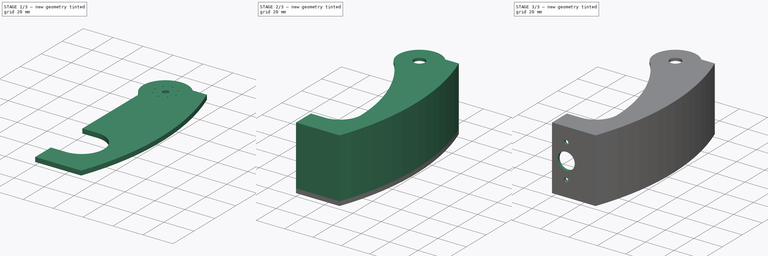
[diagram: build sequence overview — one tinted view per stage of 3, left to right]
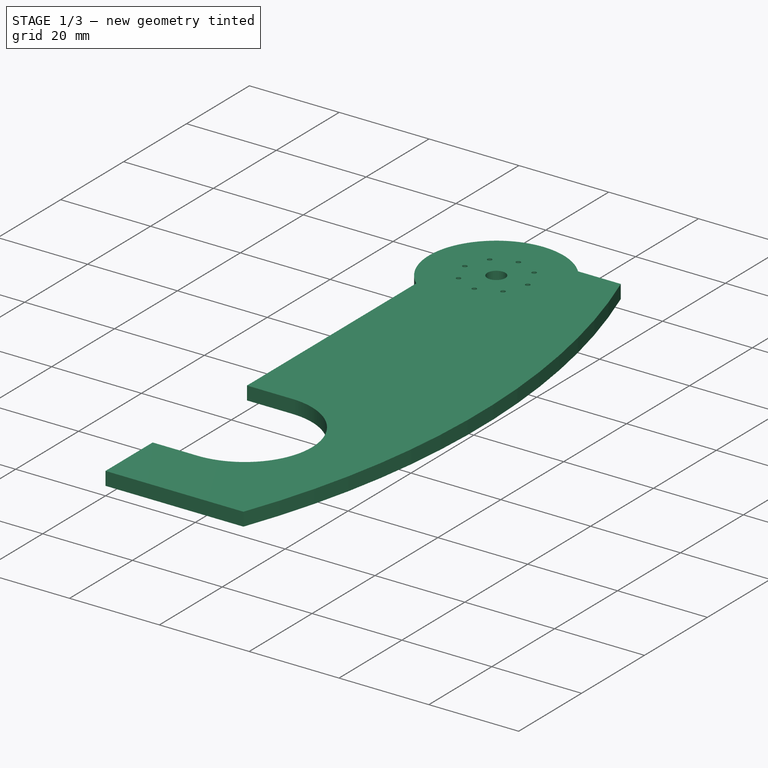
[diagram: stage 1 of 3 — iso view after this stage's code; geometry added in this stage tinted green]
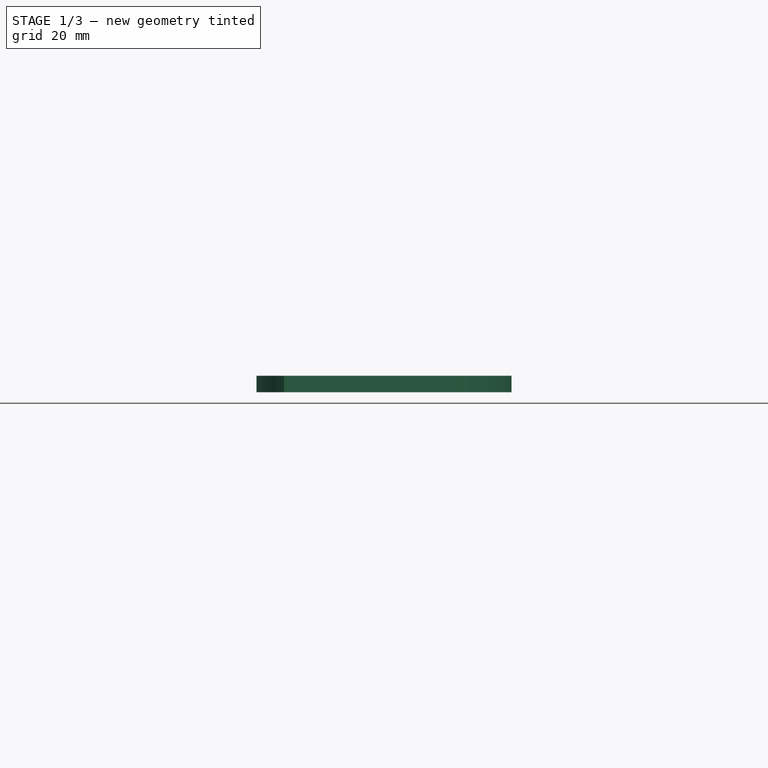
[diagram: stage 1 of 3 — front view after this stage's code; geometry added in this stage tinted green]
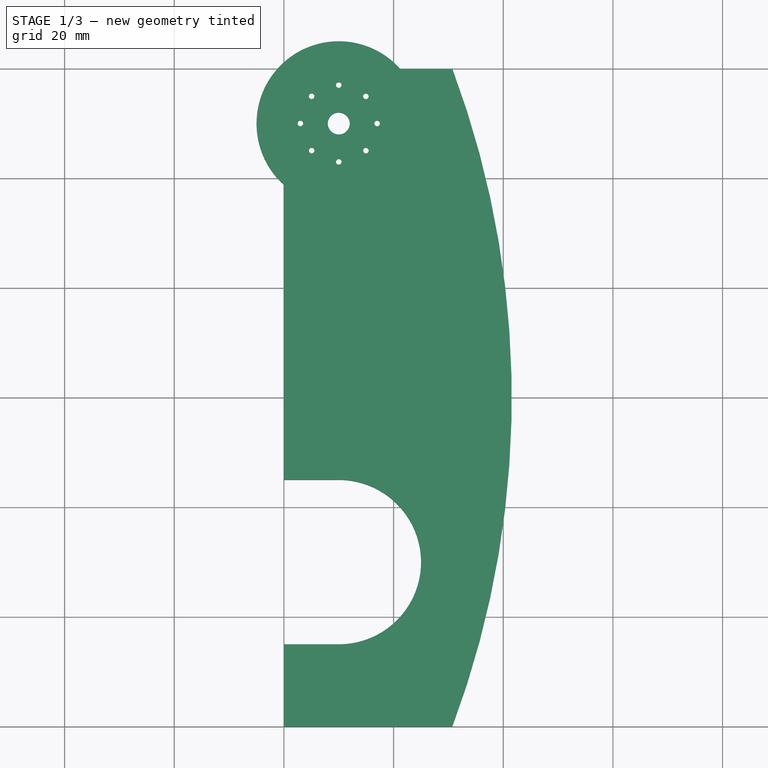
[diagram: stage 1 of 3 — top view after this stage's code; geometry added in this stage tinted green]
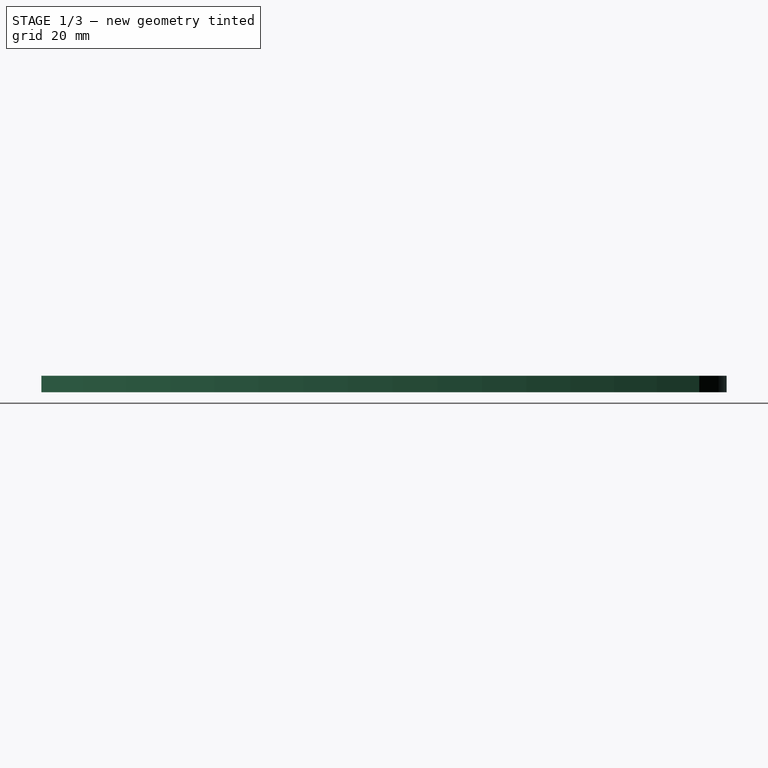
[diagram: stage 1 of 3 — right view after this stage's code; geometry added in this stage tinted green]
FCSTD DOCUMENT  (FreeCAD 0.17R13541 (Git))
Label: leg3-1
License: All rights reserved
LicenseURL: http://en.wikipedia.org/wiki/All_rights_reserved
objects: Sketcher::SketchObject×6, PartDesign::Pad×3, PartDesign::Pocket×3, PartDesign::Body×1, App::Part×1
note: 19 computed .brp shape members not serialized (recipe doc carries the construction recipe); baked Part::Feature solids carry a one-line shape summary decoded from their .brp

FEATURE [Sketcher::SketchObject] Sketch
  MapMode = 5
  Support = -> [XY_Plane001]
  sketch-geometry (30):
    g0: GeomPoint [constr] X=-130 Y=60 Z=0
    g1: LineSegment StartX=0 StartY=0 StartZ=0 EndX=30.7123 EndY=0 EndZ=0
    g2: ArcOfCircle CenterX=-130 CenterY=60 CenterZ=0 NormalX=0 NormalY=0 NormalZ=1 AngleXU=0 Radius=171.547 StartAngle=5.92587 EndAngle=6.6405
    g3: Circle CenterX=10 CenterY=110 CenterZ=0 NormalX=0 NormalY=0 NormalZ=1 AngleXU=0 Radius=2
    g4: LineSegment [constr] StartX=10 StartY=110 StartZ=0 EndX=10 EndY=121.404 EndZ=0
    g5: LineSegment [constr] StartX=10 StartY=110 StartZ=0 EndX=10 EndY=30 EndZ=0
    g6: LineSegment [constr] StartX=10 StartY=110 StartZ=0 EndX=20.6504 EndY=110 EndZ=0
    g7: LineSegment [constr] StartX=10 StartY=110 StartZ=0 EndX=4.23642 EndY=110 EndZ=0
    g8: Circle CenterX=10 CenterY=117 CenterZ=0 NormalX=0 NormalY=0 NormalZ=1 AngleXU=0 Radius=0.5
    g9: Circle CenterX=17 CenterY=110 CenterZ=0 NormalX=0 NormalY=0 NormalZ=1 AngleXU=0 Radius=0.5
    g10: Circle CenterX=10 CenterY=103 CenterZ=0 NormalX=0 NormalY=0 NormalZ=1 AngleXU=0 Radius=0.5
    g11: Circle CenterX=3 CenterY=110 CenterZ=0 NormalX=0 NormalY=0 NormalZ=1 AngleXU=0 Radius=0.5
    g12: LineSegment [constr] StartX=10 StartY=30 StartZ=0 EndX=10 EndY=0.008791 EndZ=0
    g13: ArcOfCircle CenterX=10 CenterY=30 CenterZ=0 NormalX=0 NormalY=0 NormalZ=1 AngleXU=0 Radius=15 StartAngle=4.71239 EndAngle=7.85398
    g14: LineSegment StartX=10 StartY=45 StartZ=0 EndX=0 EndY=45 EndZ=0
    g15: LineSegment StartX=10 StartY=15 StartZ=0 EndX=0 EndY=15 EndZ=0
    g16: LineSegment StartX=0 StartY=15 StartZ=0 EndX=0 EndY=0 EndZ=0
    g17: LineSegment [constr] StartX=0 StartY=45 StartZ=0 EndX=0 EndY=120 EndZ=0
    g18: LineSegment [constr] StartX=30.7123 StartY=120 StartZ=0 EndX=0 EndY=120 EndZ=0
    g19: ArcOfCircle CenterX=10 CenterY=110 CenterZ=0 NormalX=0 NormalY=0 NormalZ=1 AngleXU=0 Radius=15 StartAngle=0.729728 EndAngle=3.98266
    g20: LineSegment StartX=0 StartY=98.8197 StartZ=0 EndX=0 EndY=45 EndZ=0
    g21: LineSegment StartX=21.1803 StartY=120 StartZ=0 EndX=30.7123 EndY=120 EndZ=0
    g22: LineSegment [constr] StartX=10 StartY=110 StartZ=0 EndX=14.9497 EndY=114.95 EndZ=0
    g23: LineSegment [constr] StartX=10 StartY=110 StartZ=0 EndX=5.05025 EndY=105.05 EndZ=0
    g24: LineSegment [constr] StartX=10 StartY=110 StartZ=0 EndX=14.9497 EndY=105.05 EndZ=0
    g25: LineSegment [constr] StartX=10 StartY=110 StartZ=0 EndX=5.05025 EndY=114.95 EndZ=0
    g26: Circle CenterX=14.9497 CenterY=114.95 CenterZ=0 NormalX=0 NormalY=0 NormalZ=1 AngleXU=0 Radius=0.5
    g27: Circle CenterX=14.9497 CenterY=105.05 CenterZ=0 NormalX=0 NormalY=0 NormalZ=1 AngleXU=0 Radius=0.5
    g28: Circle CenterX=5.05025 CenterY=105.05 CenterZ=0 NormalX=0 NormalY=0 NormalZ=1 AngleXU=0 Radius=0.5
    g29: Circle CenterX=5.05025 CenterY=114.95 CenterZ=0 NormalX=0 NormalY=0 NormalZ=1 AngleXU=0 Radius=0.5
  constraints (74):
    c: DistanceY(g-1,g17) = 120
    c: Coincident(g1,g-1)
    c: PointOnObject(g1,g-1)
    c: Coincident(g2,g0)
    c: Coincident(g2,g1)
    c: Radius(g3) = 2
    c: DistanceX(g17,g3) = 10
    c: DistanceY(g3,g17) = 10
    c: Coincident(g4,g3)
    c: Vertical(g4)
    c: Coincident(g5,g3)
    c: Vertical(g5)
    c: Coincident(g6,g3)
    c: Horizontal(g6)
    c: Coincident(g7,g3)
    c: Horizontal(g7)
    c: PointOnObject(g8,g4)
    c: PointOnObject(g9,g6)
    c: PointOnObject(g10,g5)
    c: PointOnObject(g11,g7)
    c: Radius(g8) = 0.5
    c: Equal(g8,g11)
    c: Equal(g8,g9)
    c: Equal(g8,g10)
    c: DistanceX(g11,g3) = 7
    c: DistanceX(g3,g9) = 7
    c: DistanceY(g3,g8) = 7
    c: DistanceY(g10,g3) = 7
    c: DistanceY(g5,g5) = 80
    c: Coincident(g12,g5)
    c: Vertical(g12)
    c: Coincident(g13,g5)
    c: PointOnObject(g13,g5)
    c: PointOnObject(g13,g12)
    c: Radius(g13) = 15
    c: Coincident(g14,g13)
    c: Horizontal(g14)
    c: Coincident(g15,g13)
    c: Horizontal(g15)
    c: Coincident(g16,g15)
    c: Coincident(g16,g-1)
    c: Vertical(g16)
    c: Coincident(g17,g14)
    c: Coincident(g18,g17)
    c: Horizontal(g18)
    c: Coincident(g19,g3)
    c: PointOnObject(g19,g18)
    c: PointOnObject(g19,g17)
    c: Radius(g19) = 15
    c: Vertical(g17)
    c: PointOnObject(g14,g-2)
    c: Coincident(g20,g19)
    c: Coincident(g20,g14)
    c: Coincident(g21,g19)
    c: Distance(g3,g2) = 23
    c: Horizontal(g21)
    c: Coincident(g18,g21)
    c: Coincident(g18,g2)
    c: Angle(g6,g22) = 0.785398
    c: Angle(g24,g6) = 0.785398
    c: Angle(g7,g23) = 0.785398
    c: Angle(g25,g7) = 0.785398
    c: Distance(g24) = 7
    c: Distance(g23) = 7
    c: Distance(g25) = 7
    c: Distance(g22) = 7
    c: Coincident(g22,g26)
    c: Coincident(g24,g27)
    c: Coincident(g23,g28)
    c: Coincident(g25,g29)
    c: Radius(g27) = 0.5
    c: Equal(g27,g26)
    c: Equal(g27,g29)
    c: Equal(g27,g28)
FEATURE [PartDesign::Pad] Pad
  Length = 3
  Length2 = 100
  Profile = -> Sketch
  Type = 0
FEATURE [Sketcher::SketchObject] Sketch002
  ExternalGeometry = -> [Pad]
  MapMode = 5
  Placement = pos=(0,0,3) rot=(0,0,1;0rad)
  Support = -> [Pad]
  sketch-geometry (6):
    g0: ArcOfCircle CenterX=-130 CenterY=60 CenterZ=0 NormalX=0 NormalY=0 NormalZ=1 AngleXU=0 Radius=171.547 StartAngle=5.92587 EndAngle=6.6405
    g1: LineSegment StartX=30.7123 StartY=-6e-12 StartZ=0 EndX=0 EndY=0 EndZ=0
    g2: LineSegment StartX=0 StartY=0 StartZ=0 EndX=0 EndY=2 EndZ=0
    g3: LineSegment StartX=0 StartY=2 StartZ=0 EndX=27.7123 EndY=2 EndZ=0
    g4: LineSegment StartX=30.7123 StartY=120 StartZ=0 EndX=27.7123 EndY=120 EndZ=0
    g5: ArcOfCircle CenterX=-115.289 CenterY=61 CenterZ=0 NormalX=0 NormalY=0 NormalZ=1 AngleXU=0 Radius=154.695 StartAngle=5.89188 EndAngle=6.67449
  constraints (16):
    c: Coincident(g0,g-3)
    c: Coincident(g0,g-3)
    c: Coincident(g0,g-4)
    c: Coincident(g1,g0)
    c: Coincident(g1,g-1)
    c: Coincident(g2,g-1)
    c: PointOnObject(g2,g-2)
    c: Coincident(g3,g2)
    c: Horizontal(g3)
    c: DistanceY(g2,g2) = 2
    c: DistanceX(g3,g0) = 3
    c: Coincident(g4,g0)
    c: PointOnObject(g4,g-4)
    c: DistanceX(g4,g4) = 3
    c: Coincident(g5,g4)
    c: Coincident(g5,g3)
FEATURE [Sketcher::SketchObject] Sketch003
  MapMode = 5
  Placement = pos=(0,0,0) rot=(1,0,0;3.14159rad)
  sketch-geometry (8):
    g0: Circle CenterX=5.05025 CenterY=-114.95 CenterZ=0 NormalX=0 NormalY=0 NormalZ=1 AngleXU=0 Radius=2
    g1: Circle CenterX=5.05025 CenterY=-105.05 CenterZ=0 NormalX=0 NormalY=0 NormalZ=1 AngleXU=0 Radius=2
    g2: Circle CenterX=14.9497 CenterY=-105.05 CenterZ=0 NormalX=0 NormalY=0 NormalZ=1 AngleXU=0 Radius=2
    g3: Circle CenterX=14.9497 CenterY=-114.95 CenterZ=0 NormalX=0 NormalY=0 NormalZ=1 AngleXU=0 Radius=2
    g4: Circle CenterX=10 CenterY=-103 CenterZ=0 NormalX=0 NormalY=0 NormalZ=1 AngleXU=0 Radius=2
    g5: Circle CenterX=17 CenterY=-110 CenterZ=0 NormalX=0 NormalY=0 NormalZ=1 AngleXU=0 Radius=2
    g6: Circle CenterX=10 CenterY=-117 CenterZ=0 NormalX=0 NormalY=0 NormalZ=1 AngleXU=0 Radius=2
    g7: Circle CenterX=3 CenterY=-110 CenterZ=0 NormalX=0 NormalY=0 NormalZ=1 AngleXU=0 Radius=2
  constraints (8):
    c: Radius(g0) = 2
    c: Equal(g0,g1)
    c: Equal(g0,g2)
    c: Equal(g0,g3)
    c: Radius(g7) = 2
    c: Equal(g7,g4)
    c: Equal(g7,g5)
    c: Equal(g7,g6)
FEATURE [PartDesign::Pocket] Pocket
  BaseFeature = -> Pad
  Length = 2
  Length2 = 100
  Profile = -> Sketch003
  Type = 0
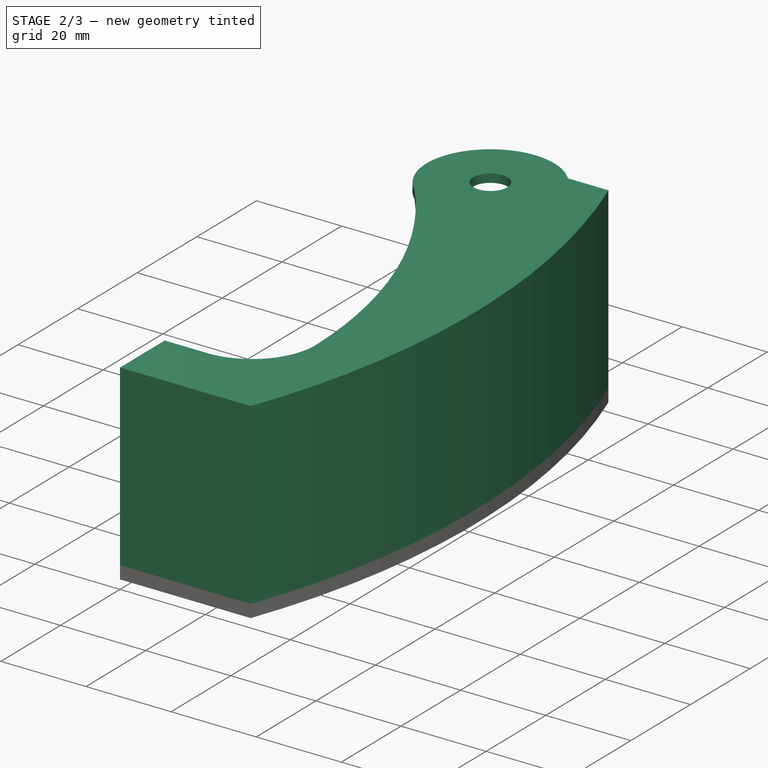
[diagram: stage 2 of 3 — iso view after this stage's code; geometry added in this stage tinted green]
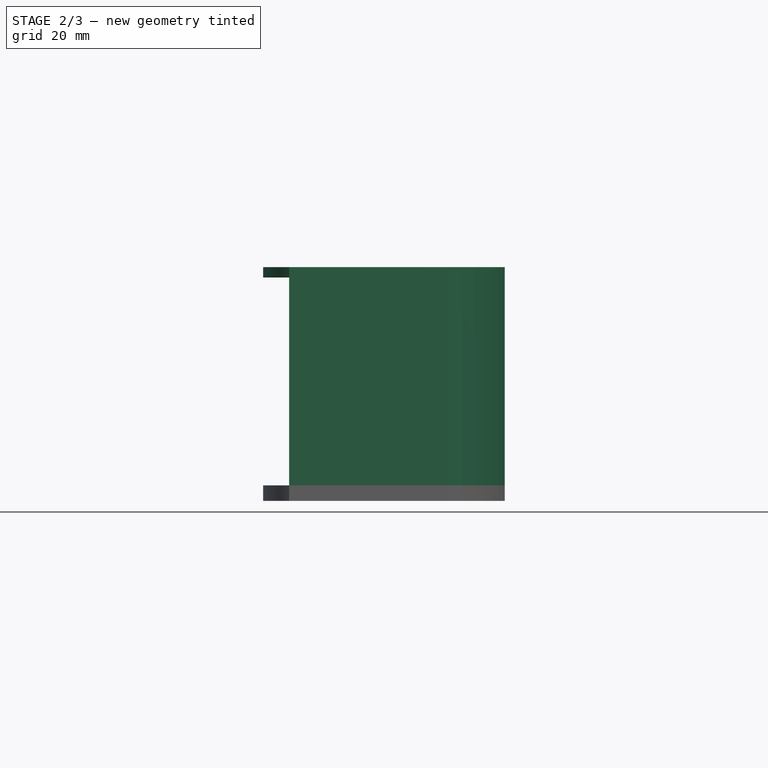
[diagram: stage 2 of 3 — front view after this stage's code; geometry added in this stage tinted green]
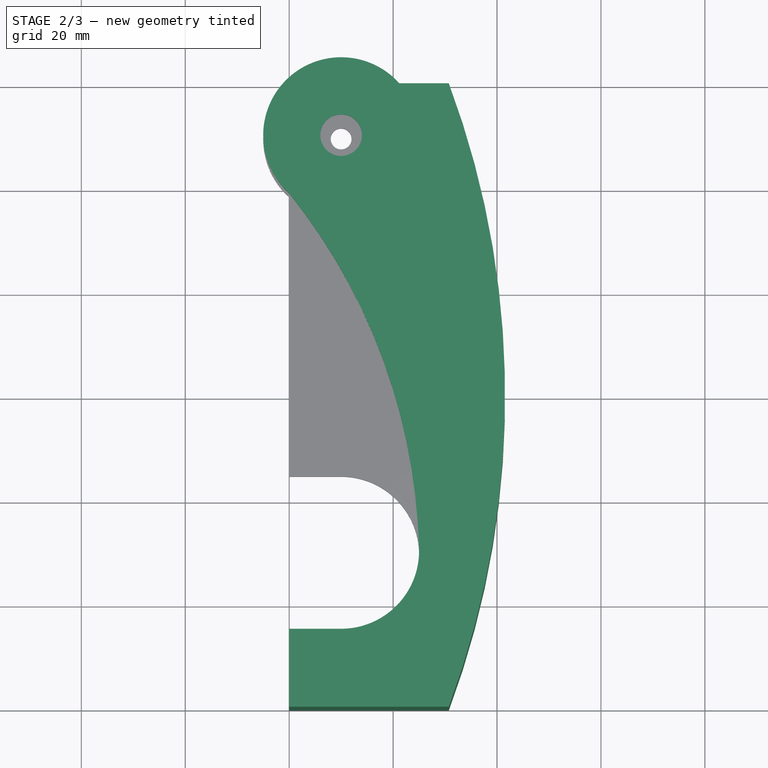
[diagram: stage 2 of 3 — top view after this stage's code; geometry added in this stage tinted green]
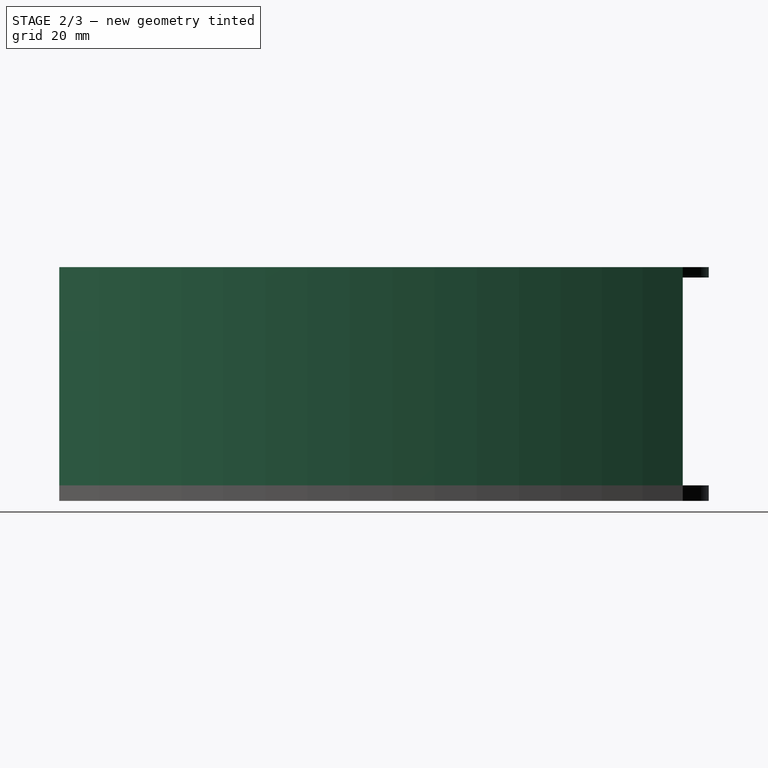
[diagram: stage 2 of 3 — right view after this stage's code; geometry added in this stage tinted green]
FEATURE [PartDesign::Pad] Pad001
  BaseFeature = -> Pocket
  Length = 40
  Length2 = 100
  Profile = -> Sketch002
  Type = 0
FEATURE [Sketcher::SketchObject] Sketch001
  ExternalGeometry = -> [Pad]
  MapMode = 5
  Placement = pos=(0,0,43) rot=(0,0,1;0rad)
  Support = -> [Pad001]
  sketch-geometry (9):
    g0: LineSegment StartX=10 StartY=15 StartZ=0 EndX=0 EndY=15 EndZ=0
    g1: LineSegment StartX=0 StartY=15 StartZ=0 EndX=0 EndY=0 EndZ=0
    g2: LineSegment StartX=0 StartY=0 StartZ=0 EndX=30.7123 EndY=0 EndZ=0
    g3: LineSegment StartX=30.7123 StartY=120 StartZ=0 EndX=21.1803 EndY=120 EndZ=0
    g4: ArcOfCircle CenterX=10 CenterY=110 CenterZ=0 NormalX=0 NormalY=0 NormalZ=1 AngleXU=0 Radius=15 StartAngle=0.729728 EndAngle=3.98266
    g5: ArcOfCircle CenterX=10 CenterY=30 CenterZ=0 NormalX=0 NormalY=0 NormalZ=1 AngleXU=0 Radius=15 StartAngle=4.71239 EndAngle=6.28319
    g6: ArcOfCircle CenterX=-130 CenterY=60 CenterZ=0 NormalX=0 NormalY=0 NormalZ=1 AngleXU=0 Radius=171.547 StartAngle=5.92587 EndAngle=6.6405
    g7: Circle CenterX=10 CenterY=110 CenterZ=0 NormalX=0 NormalY=0 NormalZ=1 AngleXU=0 Radius=4
    g8: ArcOfCircle CenterX=-89.1065 CenterY=27.4994 CenterZ=0 NormalX=0 NormalY=0 NormalZ=1 AngleXU=0 Radius=114.134 StartAngle=0.0219112 EndAngle=0.674981
  constraints (21):
    c: Coincident(g0,g-4)
    c: Coincident(g0,g-5)
    c: Coincident(g1,g0)
    c: Coincident(g1,g-1)
    c: Coincident(g2,g-1)
    c: Coincident(g2,g-6)
    c: Coincident(g3,g-6)
    c: Coincident(g3,g-7)
    c: Horizontal(g3)
    c: Coincident(g4,g-7)
    c: Coincident(g4,g3)
    c: Coincident(g5,g-4)
    c: Coincident(g5,g0)
    c: Coincident(g6,g-6)
    c: Coincident(g6,g3)
    c: Coincident(g6,g2)
    c: Coincident(g7,g4)
    c: Radius(g7) = 4
    c: DistanceY(g5,g5) = 0
    c: Coincident(g8,g4)
    c: Coincident(g8,g5)
FEATURE [PartDesign::Pad] Pad002
  BaseFeature = -> Pad001
  Length = 2
  Length2 = 100
  Profile = -> Sketch001
  Type = 0
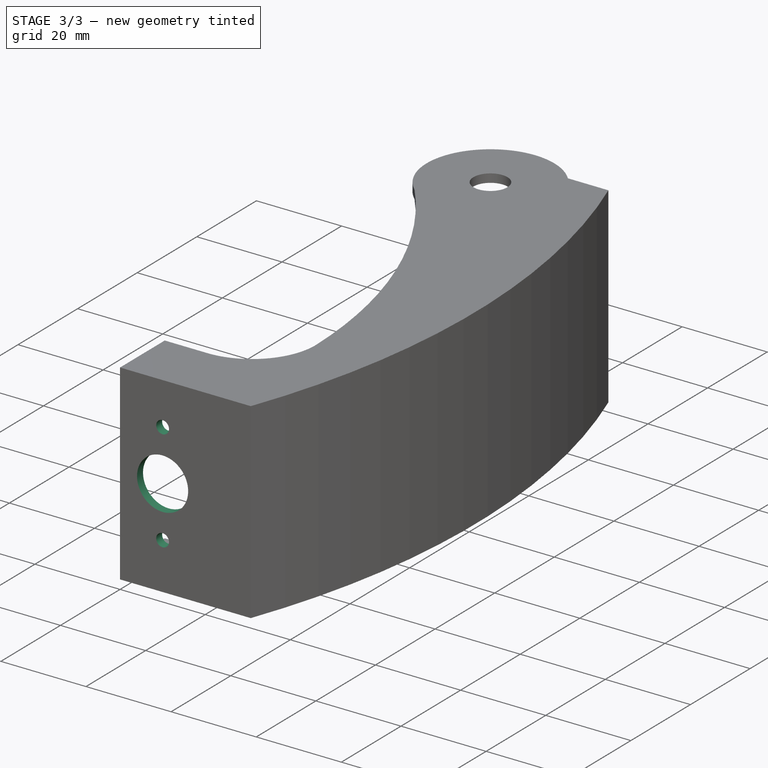
[diagram: stage 3 of 3 — iso view after this stage's code; geometry added in this stage tinted green]
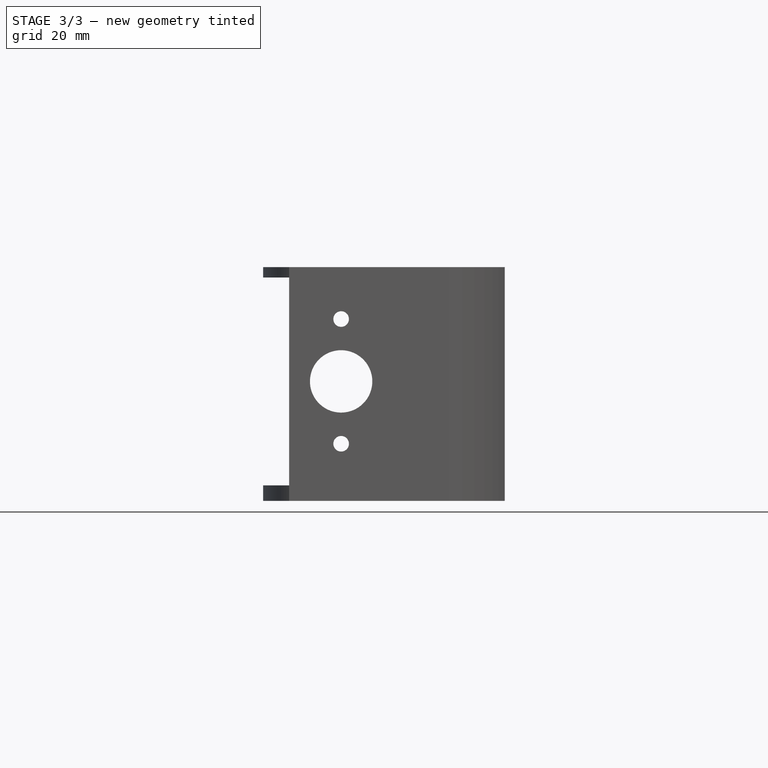
[diagram: stage 3 of 3 — front view after this stage's code; geometry added in this stage tinted green]
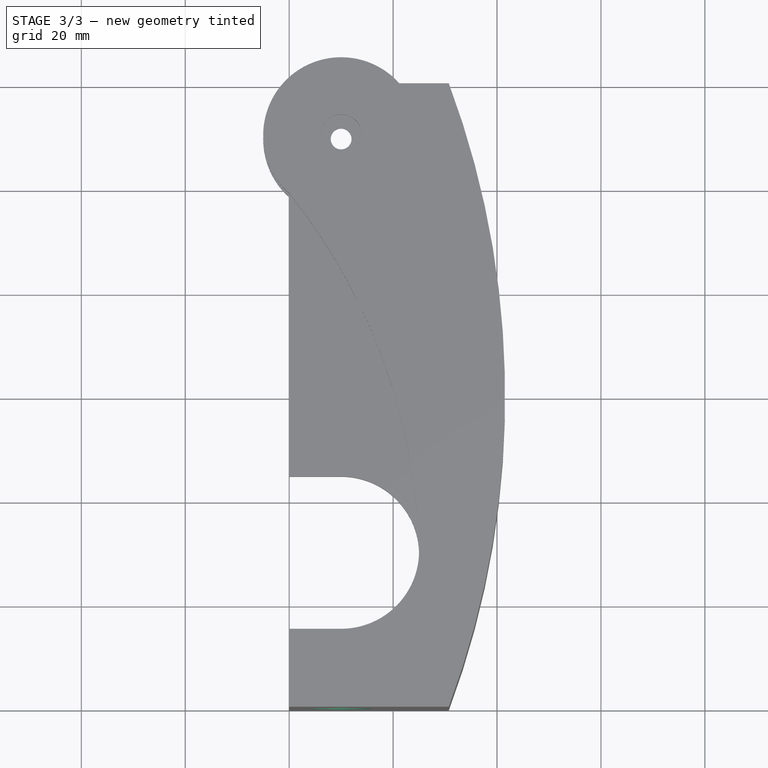
[diagram: stage 3 of 3 — top view after this stage's code; geometry added in this stage tinted green]
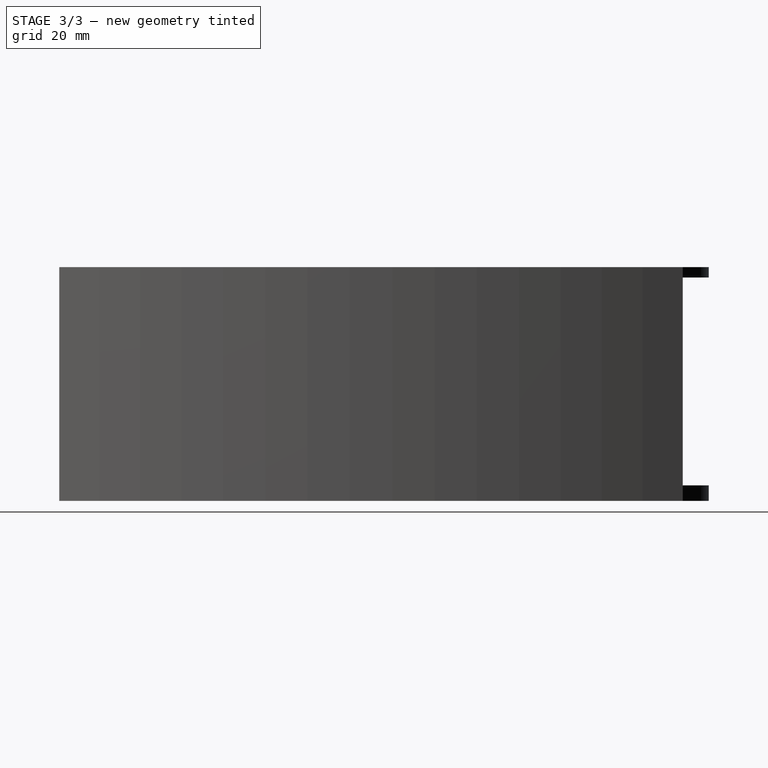
[diagram: stage 3 of 3 — right view after this stage's code; geometry added in this stage tinted green]
FEATURE [Sketcher::SketchObject] Sketch004
  ExternalGeometry = -> [Pad002]
  MapMode = 5
  Placement = pos=(0,0,0) rot=(1,0,0;1.5708rad)
  Support = -> [Pad002]
  sketch-geometry (3):
    g0: Circle CenterX=10 CenterY=23 CenterZ=0 NormalX=0 NormalY=0 NormalZ=1 AngleXU=0 Radius=6
    g1: Circle CenterX=10 CenterY=35 CenterZ=0 NormalX=0 NormalY=0 NormalZ=1 AngleXU=0 Radius=1.5
    g2: Circle CenterX=10 CenterY=11 CenterZ=0 NormalX=0 NormalY=0 NormalZ=1 AngleXU=0 Radius=1.5
  constraints (9):
    c: Radius(g0) = 6
    c: DistanceX(g-3,g0) = 10
    c: DistanceY(g0,g-3) = 20
    c: DistanceX(g-3,g2) = 10
    c: DistanceX(g-3,g1) = 10
    c: DistanceY(g0,g1) = 12
    c: DistanceY(g2,g0) = 12
    c: Radius(g1) = 1.5
    c: Equal(g1,g2)
FEATURE [PartDesign::Pocket] Pocket001
  BaseFeature = -> Pad002
  Length = 5
  Length2 = 100
  Profile = -> Sketch004
  Type = 0
FEATURE [Sketcher::SketchObject] Sketch005
  ExternalGeometry = -> [Pocket001]
  MapMode = 5
  Placement = pos=(0,0,0) rot=(1,0,0;3.14159rad)
  Support = -> [Pocket001]
  sketch-geometry (1):
    g0: Circle CenterX=10 CenterY=-110 CenterZ=0 NormalX=0 NormalY=0 NormalZ=1 AngleXU=0 Radius=4
  constraints (2):
    c: Coincident(g0,g-3)
    c: Radius(g0) = 4
FEATURE [PartDesign::Pocket] Pocket002
  BaseFeature = -> Pocket001
  Length = 1.5
  Length2 = 100
  Profile = -> Sketch005
  Type = 0
FEATURE [PartDesign::Body] PocketBody
  Group = -> [Sketch,Pad,Sketch001,Sketch002,Sketch003,Pocket,Pad001,Pad002,Sketch004,Pocket001,Sketch005,Pocket002]
  Origin = -> Origin001
  Tip = -> Pocket002
FEATURE [App::Part] Part
  Group = -> [PocketBody]
  License = CC BY 3.0
  LicenseURL = http://creativecommons.org/licenses/by/3.0/
  Origin = -> Origin
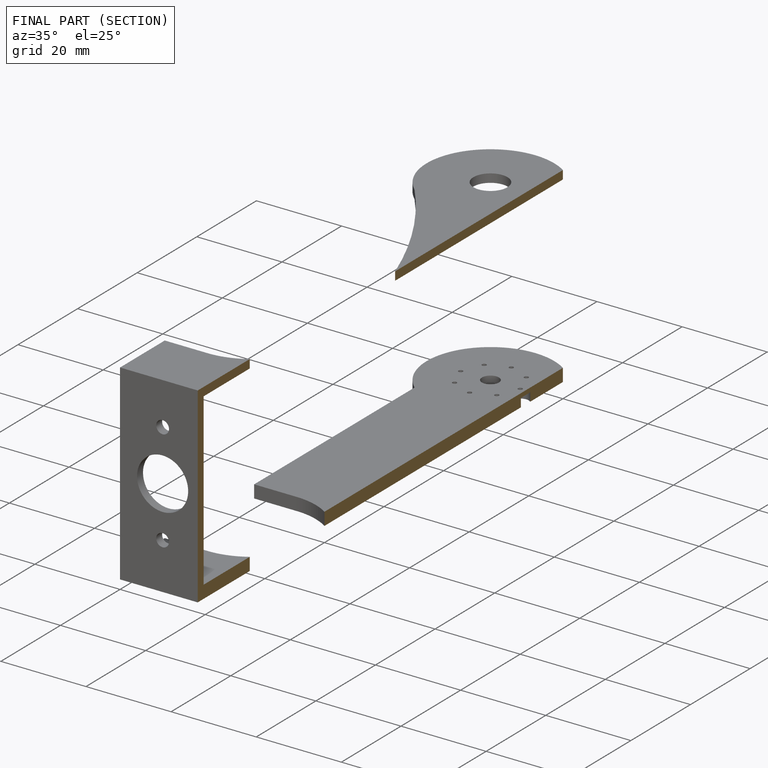
[diagram: finished part — half-section view (interior)]
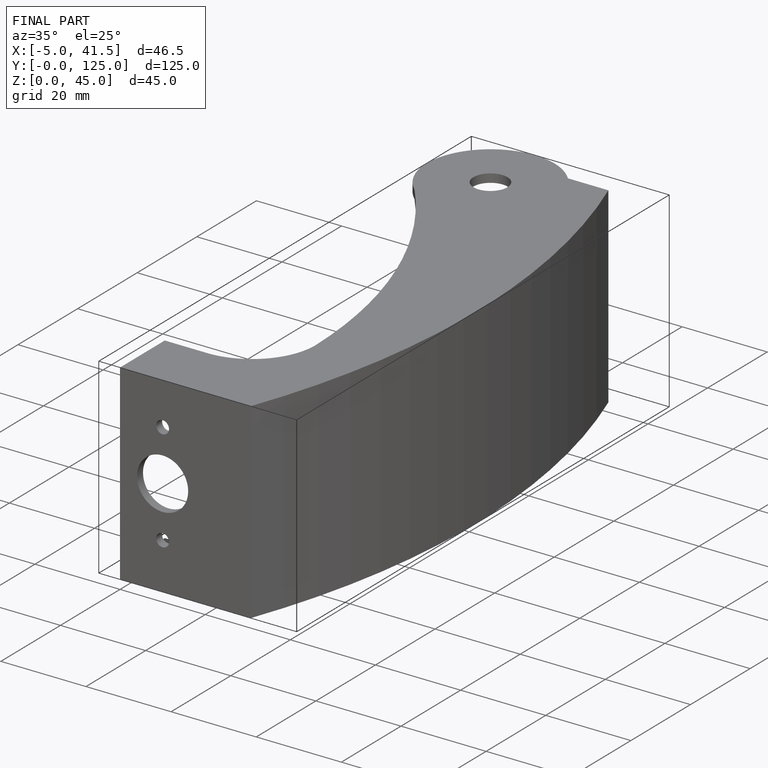
[diagram: finished part — iso view with bounding-box wireframe]
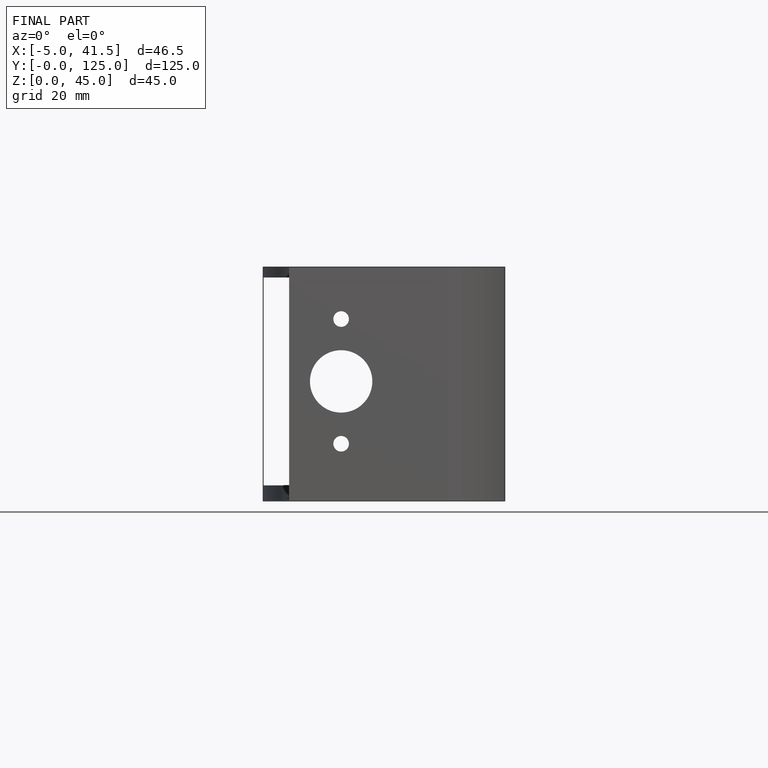
[diagram: finished part — front view with bounding-box wireframe]
